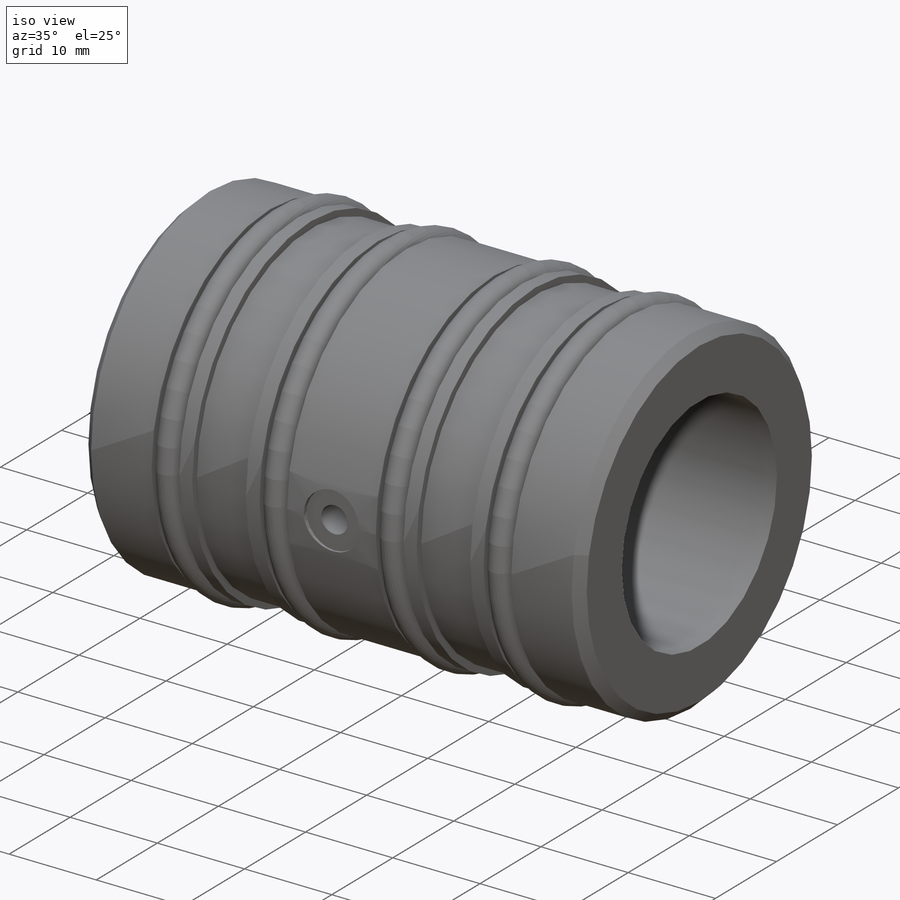
[diagram: iso view]
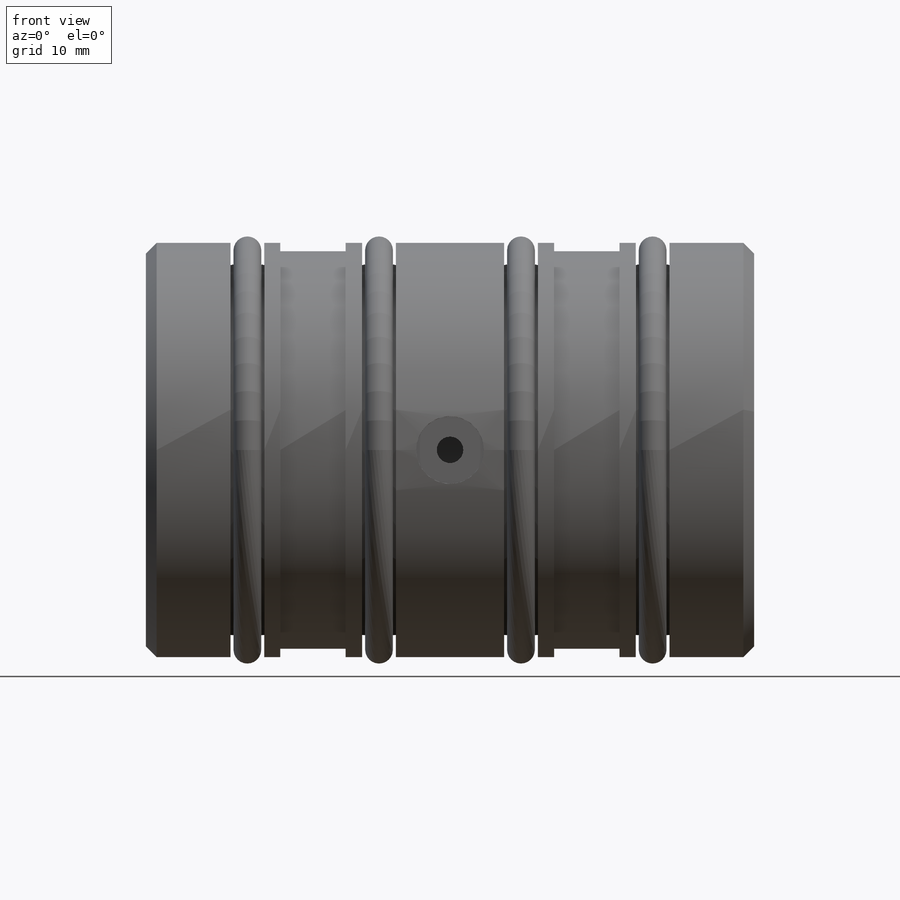
[diagram: front view]
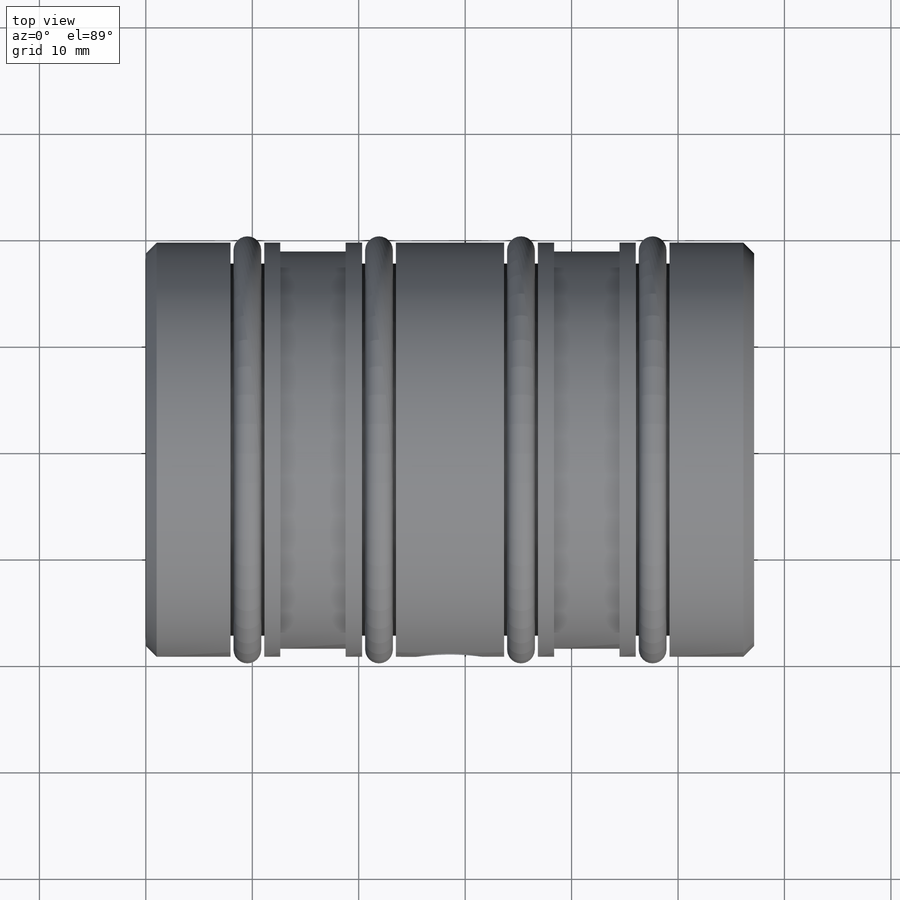
[diagram: top view]
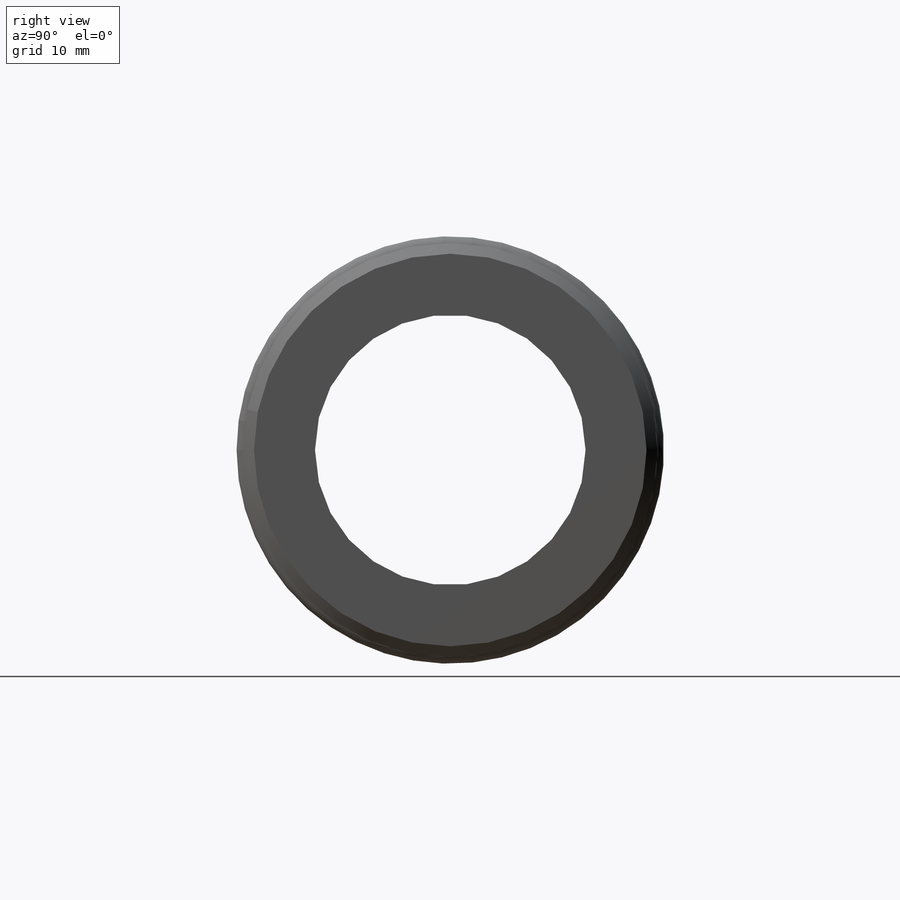
[diagram: right view]
SOLIDWORKS PART (.sldprt)
format: sldprt  version: not decoded by parser v0  size: 364,032 bytes
history: native  units: mm
features: sketch x6, revolve x2, hole x2, material x1, chamfer x1, plane x1 (+15 scaffold rows collapsed)
feature tree (28):
  scaffold x15  (default folders/planes/origin — collapsed)
  material  "Material <not specified>"
  sketch  "Sketch1"  dims[Bore ID=~25.42032mm OAL=57.15mm Moglice groove width=6.1468mm O-ring groove width=3.175mm Edge to 1st o-ring groove=7.9502mm Edge to 2nd o-ring groove=20.32mm Bushing OD=38.9128mm O-ring groove dia=34.9504mm D9=~0.79375mm Edge to 3rd o-ring groove=33.655mm edge to 4th o-ring groove=46.0248mm Edge to 1st moglice groove=12.6238mm Edge to 2nd moglice groove=38.354mm Moglice Groove Dia=37.3888mm]
  revolve  "Revolve1"  Angle=360deg
  chamfer  "Chamfer1"  Distance=1.016mm Angle=45deg
  plane  "Plane1"  Offset=7.9121mm
  hole  "1/4 (0.25) Diameter Hole1"  Diameter=6.35mm Depth=0.508mm
  sketch  "3DSketch1"  dims[Edge to air hole=28.575mm]
  sketch  "Sketch2"  dims[hole-wizard template sketch: 47 standard entries collapsed; hole parameters kept: c15.Hole Depth=0.508mm c15.D3=~14.816244mm c15.Drill Angle=180.0deg]
  hole  "Air Hole"  Diameter=2.4892mm Depth=6.35mm
  sketch  "Sketch4"
  sketch  "Sketch3"  dims[hole-wizard template sketch: 30 standard entries collapsed; hole parameters kept: c8.Thread Major Dia.=2.9972mm c8.Thread Depth=5.9944mm c8.D5=~14.816244mm c8.Drill Angle=118.0deg]
  sketch  "Sketch5"  dims[D1=2.6035mm D2=~20.07616mm D3=1.5875mm D4=1.5875mm D5=1.5875mm D6=1.5875mm]
  revolve  "Revolve2"  Angle=360deg
decode coverage: 10 of 11 modeling features carry decoded parameters
note: ~ marks probable driven/reference dimensions
note: suppression state not decoded; provenance and decode notes live in map.json
